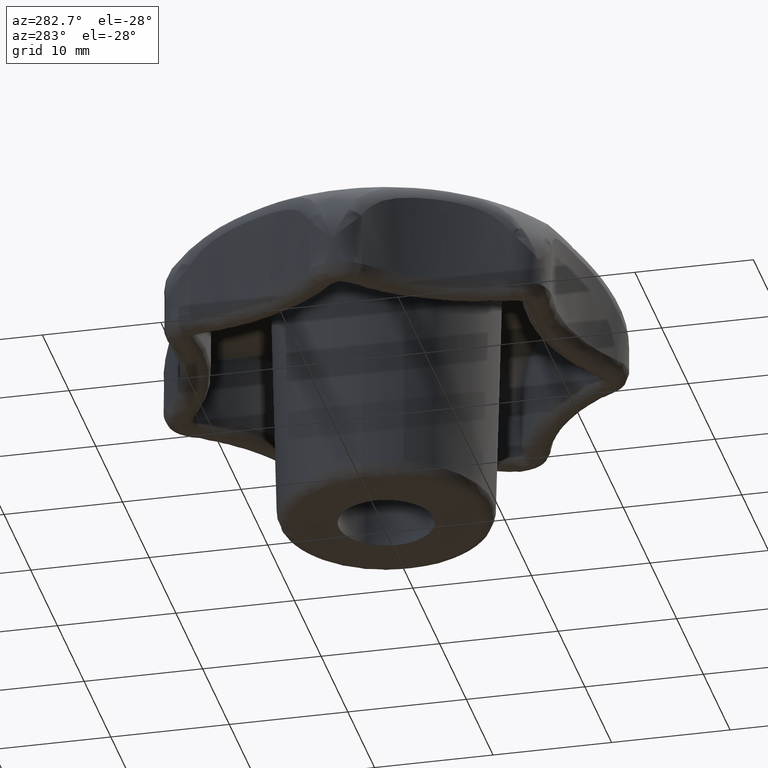
[diagram: clean part render]
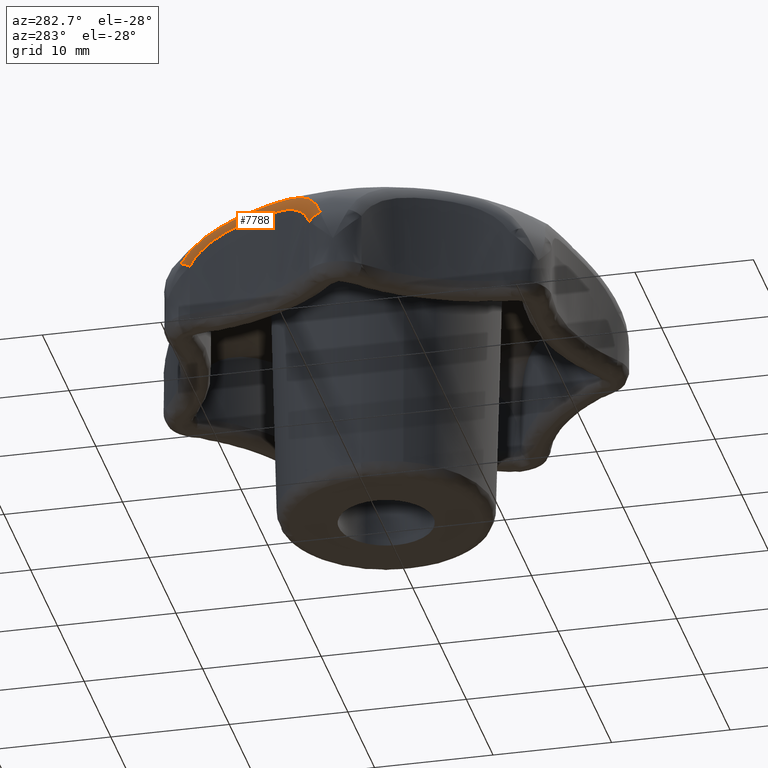
[diagram: same view with one face highlighted and labeled with its STEP entity id]
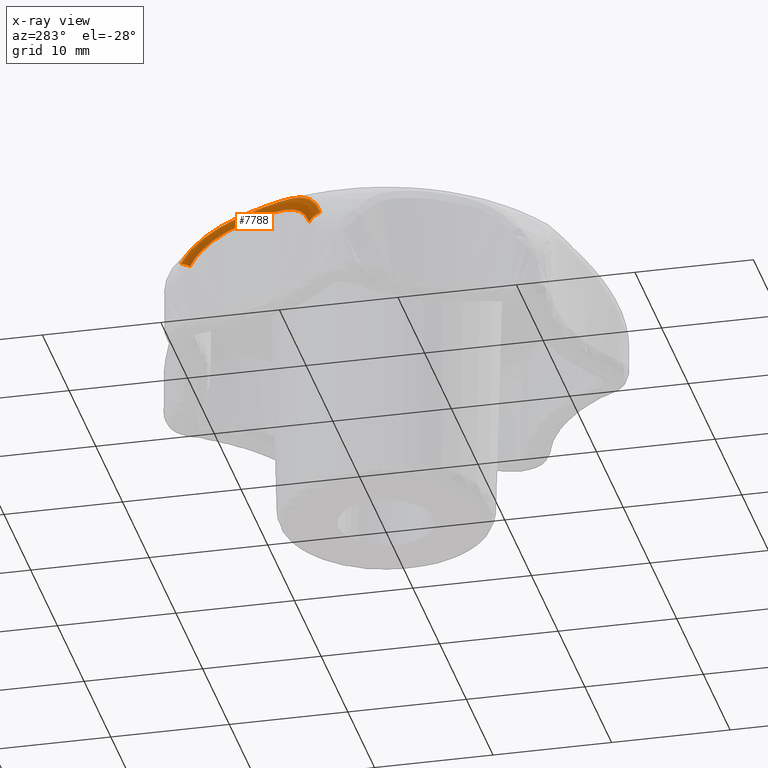
[diagram: x-ray of the same camera — body ghosted, the highlighted face saturated]
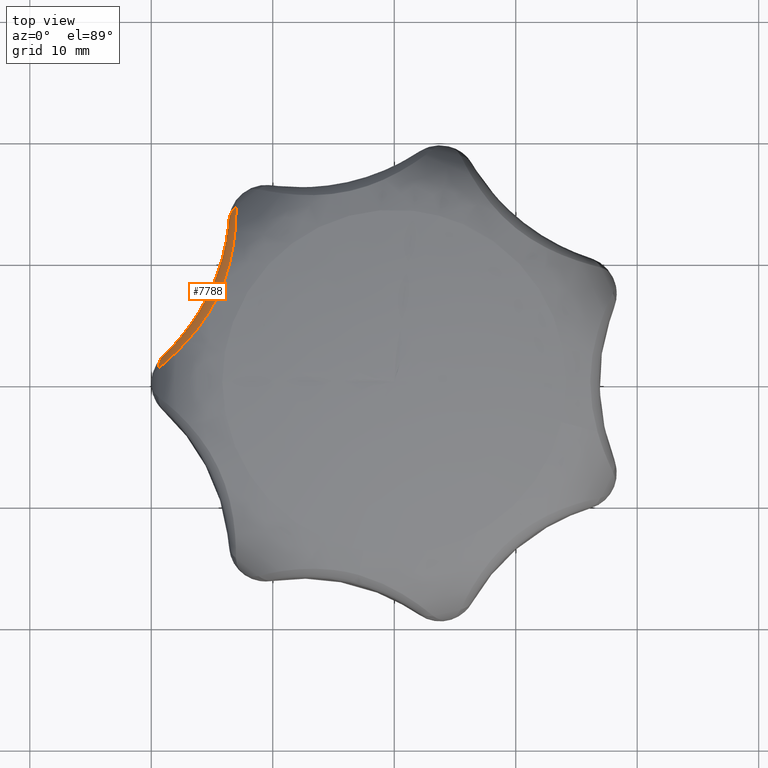
[diagram: same view with one face highlighted and labeled with its STEP entity id]
A machine part, auxiliary view. The second image highlights one B-rep face of the part: STEP entity #7788.
The next image is the same camera in x-ray: the body ghosted, the highlighted face saturated — about 0% of this face is hidden behind the body in this view.
A second angle (top view) of the same face is appended — the face is thin or edge-on in the first view.
In plain terms, the highlighted face is a freeform B-spline surface patch.
Its self-contained STEP definition (entity closure, byte-faithful):
#2648=CARTESIAN_POINT('',(-13.025311458591400,14.427530550292500,19.019536180704350));
#2649=VERTEX_POINT('',#2648);
#2669=CARTESIAN_POINT('',(-19.401046342330648,1.188180313989750,19.019536477322148));
#2670=VERTEX_POINT('',#2669);
#2671=CARTESIAN_POINT('',(-13.025311458591400,14.427530550292500,19.019536180704350));
#2672=CARTESIAN_POINT('',(-13.024703611390869,14.245952191734879,19.348599415041839));
#2673=CARTESIAN_POINT('',(-13.026108911142851,14.036789038572531,19.655302041042191));
#2674=CARTESIAN_POINT('',(-13.034659420409000,13.685182790381280,20.084584493501641));
#2675=CARTESIAN_POINT('',(-13.038590802816429,13.561634427314321,20.222520753567910));
#2676=CARTESIAN_POINT('',(-13.046626407043250,13.366969576168650,20.421820283430719));
#2677=CARTESIAN_POINT('',(-13.049662100777640,13.300522734578839,20.486984748199511));
#2678=CARTESIAN_POINT('',(-13.056544000318659,13.164524898659581,20.614784635447219));
#2679=CARTESIAN_POINT('',(-13.060398894406390,13.094833182776849,20.677539978985362));
#2680=CARTESIAN_POINT('',(-13.081854130334740,12.740336092532850,20.983530353034840));
#2681=CARTESIAN_POINT('',(-13.105791823682789,12.440047325415330,21.201533031310319));
#2682=CARTESIAN_POINT('',(-13.155556705135620,11.968147019508990,21.493273741656260));
#2683=CARTESIAN_POINT('',(-13.174460343045860,11.807252784027011,21.584617461050168));
#2684=CARTESIAN_POINT('',(-13.206817217174530,11.560856626120300,21.713213799577161));
#2685=CARTESIAN_POINT('',(-13.218270288099911,11.477881532545840,21.754675069760559));
#2686=CARTESIAN_POINT('',(-13.242606596668161,11.310295329203910,21.834851467607891));
#2687=CARTESIAN_POINT('',(-13.255465546237721,11.225867809370669,21.873472792150960));
#2688=CARTESIAN_POINT('',(-13.323014347666611,10.803027196690550,22.058557840298171));
#2689=CARTESIAN_POINT('',(-13.387765420383021,10.460353953704439,22.182154223721032));
#2690=CARTESIAN_POINT('',(-13.542302909971131,9.769511265294865,22.388961448534278));
#2691=CARTESIAN_POINT('',(-13.632089686362670,9.421336145333576,22.472152070896950));
#2692=CARTESIAN_POINT('',(-13.788539088888321,8.896837128808164,22.570745803983069));
#2693=CARTESIAN_POINT('',(-13.844319998435960,8.721625919075679,22.599223330882801));
#2694=CARTESIAN_POINT('',(-13.933836268471840,8.458424717533418,22.635665473951409));
#2695=CARTESIAN_POINT('',(-13.964609541647111,8.370753594481251,22.646744513339399));
#2696=CARTESIAN_POINT('',(-14.027728292105250,8.196466474486050,22.666732596941120));
#2697=CARTESIAN_POINT('',(-14.060118452230499,8.109717778401260,22.675660498030709));
#2698=CARTESIAN_POINT('',(-14.226253657902859,7.677963746212858,22.715166185266479));
#2699=CARTESIAN_POINT('',(-14.518902519300029,6.999915770518805,22.745867504478181));
#2700=CARTESIAN_POINT('',(-14.865985041284270,6.347764702262727,22.715955911101481));
#2701=CARTESIAN_POINT('',(-15.099727179016620,5.948165954748275,22.676932097703620));
#2702=CARTESIAN_POINT('',(-15.147314745657640,5.868645174237074,22.668099917062829));
#2703=CARTESIAN_POINT('',(-15.244157084122611,5.710396033957017,22.648301365693200));
#2704=CARTESIAN_POINT('',(-15.293465897446829,5.631584829710596,22.637321056322548));
#2705=CARTESIAN_POINT('',(-15.443321179199669,5.397183520255845,22.601170255018751));
#2706=CARTESIAN_POINT('',(-15.545857555679319,5.243509896843320,22.572793764003759));
#2707=CARTESIAN_POINT('',(-15.755793422824730,4.941199729967530,22.506865790731101));
#2708=CARTESIAN_POINT('',(-15.863303596431759,4.792439129848949,22.469252922200841));
#2709=CARTESIAN_POINT('',(-16.080846490028719,4.502273066119286,22.384804023728179));
#2710=CARTESIAN_POINT('',(-16.191086207685320,4.360556184239763,22.337910971200749));
#2711=CARTESIAN_POINT('',(-16.525253982773190,3.945138945186513,22.182261774613909));
#2712=CARTESIAN_POINT('',(-16.752640809920180,3.681141742368736,22.058620620950730));
#2713=CARTESIAN_POINT('',(-17.096669558688959,3.303643820290587,21.838056460149328));
#2714=CARTESIAN_POINT('',(-17.211835265845028,3.180901508670561,21.758664944253230));
#2715=CARTESIAN_POINT('',(-17.384788462687581,3.001381128443722,21.629888321416018));
#2716=CARTESIAN_POINT('',(-17.442496380144640,2.942287490961567,21.585319037384430));
#2717=CARTESIAN_POINT('',(-17.556927336117450,2.826587000681132,21.493577648272389));
#2718=CARTESIAN_POINT('',(-17.613768953415448,2.769855752718366,21.446319982771129));
#2719=CARTESIAN_POINT('',(-17.895866795938449,2.491677650442626,21.202969428613979));
#2720=CARTESIAN_POINT('',(-18.114815432204232,2.286591304951726,20.985779956488749));
#2721=CARTESIAN_POINT('',(-18.428354743838611,2.003772987344216,20.622831875327670));
#2722=CARTESIAN_POINT('',(-18.530383421465540,1.913649686576772,20.495638436106852));
#2723=CARTESIAN_POINT('',(-18.679015741760988,1.784664576067281,20.294889391204670));
#2724=CARTESIAN_POINT('',(-18.727738243808840,1.742779768537670,20.226413935583661));
#2725=CARTESIAN_POINT('',(-18.822789121692860,1.661756141765994,20.087260014165871));
#2726=CARTESIAN_POINT('',(-18.869215477301239,1.622532075899459,20.016451086555271));
#2727=CARTESIAN_POINT('',(-19.095679707001150,1.432703446603934,19.656217858393749));
#2728=CARTESIAN_POINT('',(-19.258811680907950,1.300831249323231,19.348350063364741));
#2729=CARTESIAN_POINT('',(-19.401046342330648,1.188180313989749,19.019536477322148));
#2730=B_SPLINE_CURVE_WITH_KNOTS('',3,(#2671,#2672,#2673,#2674,#2675,#2676,#2677,#2678,#2679,#2680,#2681,#2682,#2683,#2684,#2685,#2686,#2687,#2688,#2689,#2690,#2691,#2692,#2693,#2694,#2695,#2696,#2697,#2698,#2699,#2700,#2701,#2702,#2703,#2704,#2705,#2706,#2707,#2708,#2709,#2710,#2711,#2712,#2713,#2714,#2715,#2716,#2717,#2718,#2719,#2720,#2721,#2722,#2723,#2724,#2725,#2726,#2727,#2728,#2729),.UNSPECIFIED.,.F.,.U.,(4,2,2,2,2,2,2,2,2,2,2,2,2,2,1,2,2,2,2,2,2,2,2,2,2,2,2,2,2,4),(0.0,0.062499999999999,0.093749999999999,0.109374999999999,0.124999999999999,0.187499999999998,0.218749999999998,0.234374999999998,0.249999999999998,0.312499999999998,0.374999999999998,0.406249999999998,0.421874999999998,0.437499999999998,0.499999999999998,0.562499999999999,0.578124999999999,0.593749999999999,0.624999999999999,0.656250000000000,0.687500000000000,0.750000000000000,0.781250000000000,0.796875000000000,0.812500000000000,0.875000000000000,0.906250000000000,0.921875000000000,0.937500000000000,1.0),.UNSPECIFIED.);
#2731=EDGE_CURVE('',#2649,#2670,#2730,.T.);
#7472=CARTESIAN_POINT('',(-19.032323618235001,2.206730774418180,18.449535314902100));
#7473=VERTEX_POINT('',#7472);
#7474=CARTESIAN_POINT('',(-19.401046342330648,1.188180313989748,19.019536477322148));
#7475=CARTESIAN_POINT('',(-19.456463808517643,1.816112362060035,18.791458681313724));
#7476=CARTESIAN_POINT('',(-19.032323618235001,2.206730774418180,18.449535314902100));
#7484=(BOUNDED_CURVE()B_SPLINE_CURVE(2,(#7474,#7475,#7476),.UNSPECIFIED.,.F.,.U.)CURVE()GEOMETRIC_REPRESENTATION_ITEM()QUASI_UNIFORM_CURVE()RATIONAL_B_SPLINE_CURVE((1.0,0.912974196863381,1.0))REPRESENTATION_ITEM(''));
#7485=EDGE_CURVE('',#2670,#7473,#7484,.T.);
#7514=CARTESIAN_POINT('',(-13.589457148974804,13.536255015175412,18.377182316242514));
#7515=CARTESIAN_POINT('',(-13.590352538114221,13.523736591660171,18.400210891284516));
#7516=CARTESIAN_POINT('',(-13.591247925638337,13.511218190728432,18.423239424782476));
#7517=CARTESIAN_POINT('',(-13.603335499557977,13.342221982335813,18.734120572240560));
#7518=CARTESIAN_POINT('',(-13.618474605012167,13.160724880537831,18.997869107571510));
#7519=CARTESIAN_POINT('',(-13.650101213094091,12.855844981652329,19.361526568970785));
#7520=CARTESIAN_POINT('',(-13.662136637414479,12.748734797377466,19.477385443935827));
#7521=CARTESIAN_POINT('',(-13.689777436859911,12.523992971892108,19.698749521286366));
#7522=CARTESIAN_POINT('',(-13.705479139718539,12.405731115185997,19.804727734716625));
#7523=CARTESIAN_POINT('',(-13.757983419852732,12.041750614601915,20.102679368079169));
#7524=CARTESIAN_POINT('',(-13.800180299902278,11.786498493509782,20.275667852807757));
#7525=CARTESIAN_POINT('',(-13.901546089859371,11.255954439062586,20.579052381891778));
#7526=CARTESIAN_POINT('',(-13.961238078377695,10.978678439946920,20.710017416975880));
#7527=CARTESIAN_POINT('',(-14.164289614783618,10.142500623446875,21.040959584674045));
#7528=CARTESIAN_POINT('',(-14.331674771368235,9.576737466314535,21.183645933820848));
#7529=CARTESIAN_POINT('',(-14.634422367287568,8.726362604884473,21.322782137524886));
#7530=CARTESIAN_POINT('',(-14.744326613965645,8.441813415758567,21.356264523788102));
#7531=CARTESIAN_POINT('',(-14.977533726252561,7.883177758357255,21.399985050201739));
#7532=CARTESIAN_POINT('',(-15.101248462330433,7.607793094304230,21.410492959468776));
#7533=CARTESIAN_POINT('',(-15.493462044572071,6.793249259977153,21.410552691087521));
#7534=CARTESIAN_POINT('',(-15.782997459983147,6.265643718144621,21.370186552807272));
#7535=CARTESIAN_POINT('',(-16.259065295534338,5.497772944172849,21.231819610952058));
#7536=CARTESIAN_POINT('',(-16.424982483006723,5.245573048793237,21.172060873218879));
#7537=CARTESIAN_POINT('',(-16.762682354405950,4.760171684498110,21.021946569507843));
#7538=CARTESIAN_POINT('',(-16.935269709651401,4.525623611837847,20.931420995160845));
#7539=CARTESIAN_POINT('',(-17.285457106628730,4.073642853674595,20.711859017777922));
#7540=CARTESIAN_POINT('',(-17.464357526219587,3.854728258718567,20.581724655514201));
#7541=CARTESIAN_POINT('',(-17.817427496776517,3.442770232913618,20.277543119840374));
#7542=CARTESIAN_POINT('',(-17.990399736228735,3.250944099103291,20.104819126605776));
#7543=CARTESIAN_POINT('',(-18.240331602428306,2.984824121081843,19.809776508183635));
#7544=CARTESIAN_POINT('',(-18.322045943139852,2.899727461086799,19.705419499681827));
#7545=CARTESIAN_POINT('',(-18.481423368431493,2.736947632768462,19.483523816658323));
#7546=CARTESIAN_POINT('',(-18.559052235207446,2.659317012972882,19.365897272701854));
#7547=CARTESIAN_POINT('',(-18.779948875218633,2.442217781936321,18.999103006822651));
#7548=CARTESIAN_POINT('',(-18.912958245053499,2.316731625493069,18.734000711085343));
#7549=CARTESIAN_POINT('',(-19.037496270425116,2.201961723154430,18.423249516775893));
#7550=CARTESIAN_POINT('',(-19.046721448213283,2.193460120927755,18.400230563272839));
#7551=CARTESIAN_POINT('',(-19.055946642638016,2.184958503369405,18.377211568257707));
#7552=CARTESIAN_POINT('',(-13.589265973207228,13.539025943845795,18.378765609913103));
#7553=CARTESIAN_POINT('',(-13.590159904098531,13.526499376650241,18.401810649161686));
#7554=CARTESIAN_POINT('',(-13.591053834183127,13.513972820758928,18.424855667613933));
#7555=CARTESIAN_POINT('',(-13.603121811808457,13.344865416473489,18.735961392601961));
#7556=CARTESIAN_POINT('',(-13.618242510949848,13.163251175946694,18.999902129229451));
#7557=CARTESIAN_POINT('',(-13.649844940116244,12.858181377333343,19.363828035247931));
#7558=CARTESIAN_POINT('',(-13.661872881847266,12.751005637906141,19.479772892447585));
#7559=CARTESIAN_POINT('',(-13.689500391131647,12.526129076638542,19.701302539062734));
#7560=CARTESIAN_POINT('',(-13.705196266673614,12.407797717332750,19.807360683501738));
#7561=CARTESIAN_POINT('',(-13.757686507626104,12.043608599757910,20.105538884523909));
#7562=CARTESIAN_POINT('',(-13.799878512968171,11.788216602324518,20.278662133422660));
#7563=CARTESIAN_POINT('',(-13.901244523255812,11.257398413653535,20.582288817547692));
#7564=CARTESIAN_POINT('',(-13.960941624304407,10.979987407103893,20.713361814776999));
#7565=CARTESIAN_POINT('',(-14.164021904023308,10.143430839644310,21.044583371390747));
#7566=CARTESIAN_POINT('',(-14.331443182317919,9.577446034288913,21.187403530588458));
#7567=CARTESIAN_POINT('',(-14.634263517593892,8.726780137780381,21.326673995168044));
#7568=CARTESIAN_POINT('',(-14.744195198849622,8.442140391197391,21.360189851679458));
#7569=CARTESIAN_POINT('',(-14.977462943103749,7.883335214632850,21.403954309666396));
#7570=CARTESIAN_POINT('',(-15.101211036712732,7.607870829218005,21.414473070465270));
#7571=CARTESIAN_POINT('',(-15.493536580534528,6.793094444904319,21.414532863055626));
#7572=CARTESIAN_POINT('',(-15.783162962582313,6.265340510251793,21.374123646676150));
#7573=CARTESIAN_POINT('',(-16.259411714948939,5.497232558961289,21.235623944060492));
#7574=CARTESIAN_POINT('',(-16.425397407005526,5.244950675101907,21.175808749704942));
#7575=CARTESIAN_POINT('',(-16.763249696149792,4.759382652693806,21.025558523442164));
#7576=CARTESIAN_POINT('',(-16.935921431903857,4.524749438301476,20.934953091516498));
#7577=CARTESIAN_POINT('',(-17.286294170047647,4.072596282851873,20.715204955928812));
#7578=CARTESIAN_POINT('',(-17.465296463557696,3.853593828828104,20.584963253838552));
#7579=CARTESIAN_POINT('',(-17.818581384633426,3.441463976920366,20.280538861151545));
#7580=CARTESIAN_POINT('',(-17.991665830865021,3.249554584340600,20.107680320483389));
#7581=CARTESIAN_POINT('',(-18.241768136096091,2.983316382889336,19.812413283332962));
#7582=CARTESIAN_POINT('',(-18.323539717735315,2.898181375425210,19.707977531611427));
#7583=CARTESIAN_POINT('',(-18.483031317296490,2.735327483557880,19.485915830366878));
#7584=CARTESIAN_POINT('',(-18.560717083954579,2.657661188766556,19.368201970739818));
#7585=CARTESIAN_POINT('',(-18.781778896411321,2.440461415233161,19.001136910995445));
#7586=CARTESIAN_POINT('',(-18.914891770957418,2.314916382675991,18.735841444681192));
#7587=CARTESIAN_POINT('',(-19.039528909623893,2.200092494234764,18.424865766804555));
#7588=CARTESIAN_POINT('',(-19.048761368921006,2.191586948554620,18.401830335157872));
#7589=CARTESIAN_POINT('',(-19.057993836546750,2.183081395201600,18.378794882730880));
#7590=CARTESIAN_POINT('',(-13.549050900291610,14.121908910312600,18.711821787561689));
#7591=CARTESIAN_POINT('',(-13.549634217879902,14.107724645669055,18.738362246865442));
#7592=CARTESIAN_POINT('',(-13.550217645593410,14.093537703161724,18.764907716773308));
#7593=CARTESIAN_POINT('',(-13.558104714307605,13.901751492444122,19.123762704923045));
#7594=CARTESIAN_POINT('',(-13.569273527267656,13.696268338954209,19.428844616573535));
#7595=CARTESIAN_POINT('',(-13.595619257055136,13.352547395850047,19.850803220758493));
#7596=CARTESIAN_POINT('',(-13.606005010600684,13.232007906889006,19.985474696134890));
#7597=CARTESIAN_POINT('',(-13.630681125603466,12.979643061742481,20.243330858477936));
#7598=CARTESIAN_POINT('',(-13.645063321791069,12.847114489328293,20.367071009417018));
#7599=CARTESIAN_POINT('',(-13.694311485494090,12.440189945437737,20.715894072770194));
#7600=CARTESIAN_POINT('',(-13.735265592550029,12.156065622839465,20.919740964922653));
#7601=CARTESIAN_POINT('',(-13.836250650386104,11.568604959352374,21.279807989402983));
#7602=CARTESIAN_POINT('',(-13.896820658223765,11.263107951678304,21.436731932722903));
#7603=CARTESIAN_POINT('',(-14.105496345850943,10.346789950474259,21.836797102540935));
#7604=CARTESIAN_POINT('',(-14.280457190913825,9.733442358815992,22.014665424998316));
#7605=CARTESIAN_POINT('',(-14.599021487705263,8.819413031531548,22.190112634586587));
#7606=CARTESIAN_POINT('',(-14.714978947174256,8.514833677940844,22.232870035244087));
#7607=CARTESIAN_POINT('',(-14.961682382908723,7.918438883748767,22.288870267172793));
#7608=CARTESIAN_POINT('',(-15.092861265051827,7.625213730151269,22.302448207526339));
#7609=CARTESIAN_POINT('',(-15.510165852087354,6.758554582502795,22.302525159870086));
#7610=CARTESIAN_POINT('',(-15.819978246338334,6.197893324113142,22.249911874157281));
#7611=CARTESIAN_POINT('',(-16.335881004052236,5.377946886077939,22.075399765092605));
#7612=CARTESIAN_POINT('',(-16.516707106200151,5.107988834600058,22.000580215230070));
#7613=CARTESIAN_POINT('',(-16.887278544019715,4.586889253993179,21.815182220083905));
#7614=CARTESIAN_POINT('',(-17.077893915376112,4.334317720685297,21.704392050497066));
#7615=CARTESIAN_POINT('',(-17.467355044498049,3.846217941553409,21.438947594496728));
#7616=CARTESIAN_POINT('',(-17.667670216851267,3.609084610309159,21.282994178486245));
#7617=CARTESIAN_POINT('',(-18.065638433537760,3.161783634609787,20.921952152045140));
#7618=CARTESIAN_POINT('',(-18.261920373812362,2.952955367862625,20.718417165515557));
#7619=CARTESIAN_POINT('',(-18.547165071995419,2.662781866744824,20.372973101262126));
#7620=CARTESIAN_POINT('',(-18.640705504020129,2.569908638687634,20.251111824266900));
#7621=CARTESIAN_POINT('',(-18.823641843082807,2.392132568293217,19.992614186696468));
#7622=CARTESIAN_POINT('',(-18.913001249096727,2.307286628226273,19.855879079907531));
#7623=CARTESIAN_POINT('',(-19.167892566697990,2.069888005025299,19.430267572598630));
#7624=CARTESIAN_POINT('',(-19.322222970718251,1.932503593150217,19.123624314575540));
#7625=CARTESIAN_POINT('',(-19.467189367602991,1.806813009940468,18.764919342413489));
#7626=CARTESIAN_POINT('',(-19.477912949227999,1.797515315733317,18.738384903185210));
#7627=CARTESIAN_POINT('',(-19.488634507433275,1.788219375896932,18.711855470708425));
#7628=CARTESIAN_POINT('',(-13.023056851212583,14.476880097519865,18.934075979022133));
#7629=CARTESIAN_POINT('',(-13.023000857115946,14.460965293508893,18.962913228905595));
#7630=CARTESIAN_POINT('',(-13.022944863068036,14.445050503353285,18.991750453683430));
#7631=CARTESIAN_POINT('',(-13.022188948165173,14.230202184528995,19.381050545139477));
#7632=CARTESIAN_POINT('',(-13.023924896291271,14.000101780822380,19.711331773845028));
#7633=CARTESIAN_POINT('',(-13.034248062791985,13.615554336850485,20.166724045236325));
#7634=CARTESIAN_POINT('',(-13.038981018874443,13.480751925632729,20.311808703886737));
#7635=CARTESIAN_POINT('',(-13.051794137941897,13.198696588111241,20.589012596733660));
#7636=CARTESIAN_POINT('',(-13.059932891520818,13.050659243226404,20.721724111551008));
#7637=CARTESIAN_POINT('',(-13.090081833564705,12.596467751831737,21.094833906119565));
#7638=CARTESIAN_POINT('',(-13.117775857677149,12.279792731989991,21.311459168779518));
#7639=CARTESIAN_POINT('',(-13.192484949004410,11.626491596054128,21.691373211691918));
#7640=CARTESIAN_POINT('',(-13.239962440336438,11.287481574884399,21.855374790081417));
#7641=CARTESIAN_POINT('',(-13.413215096718670,10.273577455827601,22.269795583358253));
#7642=CARTESIAN_POINT('',(-13.569534291205489,9.598762422382414,22.448478854716107));
#7643=CARTESIAN_POINT('',(-13.877552915082527,8.601203460374075,22.622715586582878));
#7644=CARTESIAN_POINT('',(-13.992939389345718,8.270159907504377,22.664644912365421));
#7645=CARTESIAN_POINT('',(-14.245483240600324,7.624861897916192,22.719394993052592));
#7646=CARTESIAN_POINT('',(-14.383042091483897,7.309064139942389,22.732553913116266));
#7647=CARTESIAN_POINT('',(-14.830359507899347,6.380030649491863,22.732628713597521));
#7648=CARTESIAN_POINT('',(-15.174889210280694,5.785056103386549,22.682077559124078));
#7649=CARTESIAN_POINT('',(-15.762524652667054,4.921155042900745,22.508806204009723));
#7650=CARTESIAN_POINT('',(-15.970547822731318,4.637758322271758,22.433972142245885));
#7651=CARTESIAN_POINT('',(-16.399571511013871,4.091822117915792,22.245990044559981));
#7652=CARTESIAN_POINT('',(-16.621550036495755,3.827765524065502,22.132628442190498));
#7653=CARTESIAN_POINT('',(-17.076354422321614,3.317634175728967,21.857680949631440));
#7654=CARTESIAN_POINT('',(-17.310898178031309,3.069875393834478,21.694719564356333));
#7655=CARTESIAN_POINT('',(-17.777003970103625,2.601977010739223,21.313807466575092));
#7656=CARTESIAN_POINT('',(-18.006947633953665,2.383237202245749,21.097513443796597));
#7657=CARTESIAN_POINT('',(-18.340687605348425,2.078636675721552,20.728046457574681));
#7658=CARTESIAN_POINT('',(-18.450062366750213,1.981031703298824,20.597365094336087));
#7659=CARTESIAN_POINT('',(-18.663785875567747,1.793968502455958,20.319495499782413));
#7660=CARTESIAN_POINT('',(-18.768090646506533,1.704568847696898,20.172197269964300));
#7661=CARTESIAN_POINT('',(-19.065326148791048,1.454111046690977,19.712876908593458));
#7662=CARTESIAN_POINT('',(-19.244887403191143,1.308718902180729,19.380899589820324));
#7663=CARTESIAN_POINT('',(-19.413263114325083,1.175410183779413,18.991763159980380));
#7664=CARTESIAN_POINT('',(-19.425735492604655,1.165535382047815,18.962938000326218));
#7665=CARTESIAN_POINT('',(-19.438207881738801,1.155660571722276,18.934112815585795));
#7666=CARTESIAN_POINT('',(-13.020644061157959,14.478508387709958,18.935095482386636));
#7667=CARTESIAN_POINT('',(-13.020585364563846,14.462585491197672,18.963943169781142));
#7668=CARTESIAN_POINT('',(-13.020526668071888,14.446662622398080,18.992790806968280));
#7669=CARTESIAN_POINT('',(-13.019734275400088,14.231706598131790,19.382229009170707));
#7670=CARTESIAN_POINT('',(-13.021430805140882,14.001491329187447,19.712623697357870));
#7671=CARTESIAN_POINT('',(-13.031688042096322,13.616753727234158,20.168164738768748));
#7672=CARTESIAN_POINT('',(-13.036397945950995,13.481885076873354,20.313295315655772));
#7673=CARTESIAN_POINT('',(-13.049163132765944,13.199692172696780,20.590583698627391));
#7674=CARTESIAN_POINT('',(-13.057276891870236,13.051583165085965,20.723333938124032));
#7675=CARTESIAN_POINT('',(-13.087350285722158,12.597174238684101,21.096546983723311));
#7676=CARTESIAN_POINT('',(-13.114992890653149,12.280350358206745,21.313224605162461));
#7677=CARTESIAN_POINT('',(-13.189602664435105,11.626750767611993,21.693215882227033));
#7678=CARTESIAN_POINT('',(-13.237032034965360,11.287590311586497,21.857242458391507));
#7679=CARTESIAN_POINT('',(-13.410159450799739,10.273254304708372,22.271706786416935));
#7680=CARTESIAN_POINT('',(-13.566418338695494,9.598172124494765,22.450380245212518));
#7681=CARTESIAN_POINT('',(-13.874414971588966,8.600254383269364,22.624597142717157));
#7682=CARTESIAN_POINT('',(-13.989805495093966,8.269097941141990,22.666518960387869));
#7683=CARTESIAN_POINT('',(-14.242383365741350,7.623591229098265,22.721258403234319));
#7684=CARTESIAN_POINT('',(-14.379972043908230,7.307696757489065,22.734414168555823));
#7685=CARTESIAN_POINT('',(-14.827419280951775,6.378393497562271,22.734488952281247));
#7686=CARTESIAN_POINT('',(-15.172090880305781,5.783265257929656,22.683952249473418));
#7687=CARTESIAN_POINT('',(-15.760018304858923,4.919158240681402,22.510700780176172));
#7688=CARTESIAN_POINT('',(-15.968153007140405,4.635696441431626,22.435872492153333));
#7689=CARTESIAN_POINT('',(-16.397418822251659,4.089636942414410,22.247891586058593));
#7690=CARTESIAN_POINT('',(-16.619528645618765,3.825521733721527,22.134525329988094));
#7691=CARTESIAN_POINT('',(-17.074610167610601,3.315276162284965,21.859548920130536));
#7692=CARTESIAN_POINT('',(-17.309300933400838,3.067461390123399,21.696562831457634));
#7693=CARTESIAN_POINT('',(-17.775703166295322,2.599454101383307,21.315573461111473));
#7694=CARTESIAN_POINT('',(-18.005795020348099,2.380661770419581,21.099227162402038));
#7695=CARTESIAN_POINT('',(-18.339750431756379,2.075985318864853,20.729658088026085));
#7696=CARTESIAN_POINT('',(-18.449195971669202,1.978355498493074,20.598938673822182));
#7697=CARTESIAN_POINT('',(-18.663057695560401,1.791243730146074,20.320984517932079));
#7698=CARTESIAN_POINT('',(-18.767429835303194,1.701820376193121,20.173639722069705));
#7699=CARTESIAN_POINT('',(-19.064857074873807,1.451294872392587,19.714169384932067));
#7700=CARTESIAN_POINT('',(-19.244533180375743,1.305861759257865,19.382077996797197));
#7701=CARTESIAN_POINT('',(-19.413015796057422,1.172514424410226,18.992803518184136));
#7702=CARTESIAN_POINT('',(-19.425496171933975,1.162636699908491,18.963967950831481));
#7703=CARTESIAN_POINT('',(-19.437976569524093,1.152758958221319,18.935132333310204));
#7711=(BOUNDED_SURFACE()B_SPLINE_SURFACE(3,2,((#7514,#7552,#7590,#7628,#7666),(#7515,#7553,#7591,#7629,#7667),(#7516,#7554,#7592,#7630,#7668),(#7517,#7555,#7593,#7631,#7669),(#7518,#7556,#7594,#7632,#7670),(#7519,#7557,#7595,#7633,#7671),(#7520,#7558,#7596,#7634,#7672),(#7521,#7559,#7597,#7635,#7673),(#7522,#7560,#7598,#7636,#7674),(#7523,#7561,#7599,#7637,#7675),(#7524,#7562,#7600,#7638,#7676),(#7525,#7563,#7601,#7639,#7677),(#7526,#7564,#7602,#7640,#7678),(#7527,#7565,#7603,#7641,#7679),(#7528,#7566,#7604,#7642,#7680),(#7529,#7567,#7605,#7643,#7681),(#7530,#7568,#7606,#7644,#7682),(#7531,#7569,#7607,#7645,#7683),(#7532,#7570,#7608,#7646,#7684),(#7533,#7571,#7609,#7647,#7685),(#7534,#7572,#7610,#7648,#7686),(#7535,#7573,#7611,#7649,#7687),(#7536,#7574,#7612,#7650,#7688),(#7537,#7575,#7613,#7651,#7689),(#7538,#7576,#7614,#7652,#7690),(#7539,#7577,#7615,#7653,#7691),(#7540,#7578,#7616,#7654,#7692),(#7541,#7579,#7617,#7655,#7693),(#7542,#7580,#7618,#7656,#7694),(#7543,#7581,#7619,#7657,#7695),(#7544,#7582,#7620,#7658,#7696),(#7545,#7583,#7621,#7659,#7697),(#7546,#7584,#7622,#7660,#7698),(#7547,#7585,#7623,#7661,#7699),(#7548,#7586,#7624,#7662,#7700),(#7549,#7587,#7625,#7663,#7701),(#7550,#7588,#7626,#7664,#7702),(#7551,#7589,#7627,#7665,#7703)),.UNSPECIFIED.,.F.,.F.,.U.)B_SPLINE_SURFACE_WITH_KNOTS((4,2,2,2,2,2,2,2,2,2,2,2,2,2,2,2,2,2,4),(3,1,1,3),(0.0,0.098851390109416,1.334493814986808,1.952315027425503,2.570136239864199,3.805778664741591,5.041421089618983,7.512705939373765,8.748348364251156,9.983990789128548,12.455275638883331,13.690918063760730,14.926560488638120,16.162202913515511,17.397845338392901,18.015666550831590,18.633487763270288,19.869130188147679,19.967981793441162),(0.0,0.008564281345330,1.643742845438586,1.652004972958288),.UNSPECIFIED.)GEOMETRIC_REPRESENTATION_ITEM()RATIONAL_B_SPLINE_SURFACE(((1.000908890489047,1.000454445244523,0.913232752120635,1.000438412098993,1.000876824197987),(1.000909793320941,1.000454896660470,0.913146563256669,1.000438847588670,1.000877695177341),(1.000910696152835,1.000455348076417,0.913060374392703,1.000439283078348,1.000878566156695),(1.000922884383844,1.000461442191922,0.911896824686864,1.000445162189202,1.000890324378404),(1.000937235416549,1.000468617708274,0.910526803075809,1.000452084548328,1.000904169096655),(1.000964284857415,1.000482142428708,0.907944527687359,1.000465132107181,1.000930264214361),(1.000974221108457,1.000487110554229,0.906995963292052,1.000469924953765,1.000939849907529),(1.000996032822773,1.000498016411387,0.904913707568678,1.000480446044667,1.000960892089335),(1.001007977036987,1.000503988518493,0.903773452930908,1.000486207451665,1.000972414903331),(1.001046104338899,1.000523052169450,0.900133629326360,1.000504598523705,1.001009197047410),(1.001074643812202,1.000537321906101,0.897409107962897,1.000518364814084,1.001036729628168),(1.001135993497972,1.000567996748986,0.891552359040276,1.000547957427094,1.001095914854189),(1.001169032321345,1.000584516160672,0.888398307136596,1.000563894022402,1.001127788044804),(1.001266966342320,1.000633483171160,0.879049033955493,1.000611133442570,1.001222266885140),(1.001330888775730,1.000665444387865,0.872946677630348,1.000641967045233,1.001283934090467),(1.001400349174538,1.000700174587269,0.866315639332753,1.000675471938953,1.001350943877906),(1.001419062962109,1.000709531481054,0.864529127245232,1.000684498714993,1.001368997429985),(1.001444103092336,1.000722051546168,0.862138670735315,1.000696577063467,1.001393154126934),(1.001450553058205,1.000725276529103,0.861522924620521,1.000699688266752,1.001399376533504),(1.001450588882463,1.000725294441231,0.861519504657100,1.000699705546928,1.001399411093857),(1.001424107193154,1.000712053596577,0.864047579632282,1.000686931848518,1.001373863697037),(1.001354893221292,1.000677446610646,0.870655092776757,1.000653545821215,1.001307091642429),(1.001327038668821,1.000663519334410,0.873314228159859,1.000640109909009,1.001280219818018),(1.001266929226262,1.000633464613131,0.879052577240697,1.000611115539281,1.001222231078562),(1.001234595744899,1.000617297872450,0.882139293655970,1.000595519172499,1.001191038344998),(1.001169533677056,1.000584766838528,0.888350445204042,1.000564135856168,1.001128271712336),(1.001136598647789,1.000568299323895,0.891494588401446,1.000548249326949,1.001096498653897),(1.001074959213034,1.000537479606517,0.897378998216516,1.000518516950719,1.001037033901438),(1.001046465501528,1.000523232750764,0.900099150929082,1.000504772733985,1.001009545467969),(1.001008580774199,1.000504290387100,0.903715817146422,1.000486498670136,1.000972997340272),(1.000996748991222,1.000498374495611,0.904845338534090,1.000480791495430,1.000961582990860),(1.000974770292095,1.000487385146047,0.906943535465606,1.000470189857792,1.000940379715584),(1.000964634606229,1.000482317303115,0.907911138910204,1.000465300811896,1.000930601623793),(1.000937278887604,1.000468639443802,0.910522653110726,1.000452105517010,1.000904211034021),(1.000922880388822,1.000461440194411,0.911897206071680,1.000445160262165,1.000890320524329),(1.000910696492160,1.000455348246080,0.913060341998970,1.000439283242025,1.000878566484049),(1.000909793979510,1.000454896989755,0.913146500386334,1.000438847906338,1.000877695812675),(1.000908891466860,1.000454445733430,0.913232658773699,1.000438412570651,1.000876825141302)))REPRESENTATION_ITEM('')SURFACE());
#7712=CARTESIAN_POINT('',(-13.591751640692420,13.504195483846280,18.449535171352949));
#7713=VERTEX_POINT('',#7712);
#7714=CARTESIAN_POINT('',(-13.025311458591389,14.427530550292500,19.019536180704339));
#7715=CARTESIAN_POINT('',(-13.550800773047468,14.079348337422129,18.791458465080684));
#7716=CARTESIAN_POINT('',(-13.591751640692420,13.504195483846280,18.449535171352949));
#7724=(BOUNDED_CURVE()B_SPLINE_CURVE(2,(#7714,#7715,#7716),.UNSPECIFIED.,.F.,.U.)CURVE()GEOMETRIC_REPRESENTATION_ITEM()QUASI_UNIFORM_CURVE()RATIONAL_B_SPLINE_CURVE((1.0,0.912974182701209,1.0))REPRESENTATION_ITEM(''));
#7725=EDGE_CURVE('',#2649,#7713,#7724,.T.);
#7726=ORIENTED_EDGE('',*,*,#7725,.T.);
#7727=CARTESIAN_POINT('',(-19.032323618235001,2.206730774418180,18.449535314902100));
#7728=CARTESIAN_POINT('',(-18.921955842843978,2.308376049207160,18.724888326211548));
#7729=CARTESIAN_POINT('',(-18.794463228135800,2.428435403123292,18.981793012417970));
#7730=CARTESIAN_POINT('',(-18.616705776484601,2.602574059383822,19.280925043809798));
#7731=CARTESIAN_POINT('',(-18.580229789971501,2.638613126440410,19.339644774190418));
#7732=CARTESIAN_POINT('',(-18.505487785605570,2.713170817565841,19.454873086746179));
#7733=CARTESIAN_POINT('',(-18.467141568664172,2.751772257272337,19.511487397398721));
#7734=CARTESIAN_POINT('',(-18.350565666785979,2.870306904231138,19.676543388959530));
#7735=CARTESIAN_POINT('',(-18.270564147834602,2.953198981957134,19.780611747067351));
#7736=CARTESIAN_POINT('',(-18.024898111093631,3.213357302623795,20.076125234809400));
#7737=CARTESIAN_POINT('',(-17.853595212301510,3.402080188888686,20.250925423596300));
#7738=CARTESIAN_POINT('',(-17.589398983941280,3.708290698850946,20.483314809517712));
#7739=CARTESIAN_POINT('',(-17.499764014419089,3.814668787218451,20.556036203841568));
#7740=CARTESIAN_POINT('',(-17.321390842918291,4.031896766983572,20.690041378887639));
#7741=CARTESIAN_POINT('',(-17.232454502799509,4.142954047847120,20.751549553945601));
#7742=CARTESIAN_POINT('',(-16.967065387809591,4.483216254653214,20.921375484600439));
#7743=CARTESIAN_POINT('',(-16.792054293518461,4.719496557883204,21.015070218322268));
#7744=CARTESIAN_POINT('',(-16.534579497980960,5.087436425200341,21.131779300076840));
#7745=CARTESIAN_POINT('',(-16.449588830596049,5.212340194679020,21.166689786580619));
#7746=CARTESIAN_POINT('',(-16.323579074186071,5.403037410408508,21.213578011074830));
#7747=CARTESIAN_POINT('',(-16.281761874138880,5.467253993743675,21.228312804589070));
#7748=CARTESIAN_POINT('',(-16.198969338500060,5.596302428729739,21.255922550196590));
#7749=CARTESIAN_POINT('',(-16.158022248406041,5.661086807580993,21.268791124477499));
#7750=CARTESIAN_POINT('',(-15.955533472926000,5.986300332628719,21.328732260040230));
#7751=CARTESIAN_POINT('',(-15.800730091086921,6.250598620071834,21.362742099122460));
#7752=CARTESIAN_POINT('',(-15.505541040623569,6.787308930198003,21.407630618257521));
#7753=CARTESIAN_POINT('',(-15.365154371176100,7.059720868411970,21.418496916496910));
#7754=CARTESIAN_POINT('',(-15.098901202414590,7.612663875980234,21.418460907671790));
#7755=CARTESIAN_POINT('',(-14.973033792263699,7.893194313375229,21.407563549624768));
#7756=CARTESIAN_POINT('',(-14.795267370778751,8.320200689484471,21.373490019637810));
#7757=CARTESIAN_POINT('',(-14.737851799485020,8.463572547954351,21.359151879909611));
#7758=CARTESIAN_POINT('',(-14.626735497184169,8.752426346264977,21.323945603051278));
#7759=CARTESIAN_POINT('',(-14.573412759647450,8.896936431834861,21.303188122028018));
#7760=CARTESIAN_POINT('',(-14.420381008872260,9.329452436957157,21.230913062498828));
#7761=CARTESIAN_POINT('',(-14.327434096719850,9.616912681624523,21.169420547030409));
#7762=CARTESIAN_POINT('',(-14.158909446675640,10.188331380073340,21.014290765298810));
#7763=CARTESIAN_POINT('',(-14.083336703482400,10.472297405828391,20.920675864248292));
#7764=CARTESIAN_POINT('',(-13.999251192041280,10.823502071854080,20.778329948595552));
#7765=CARTESIAN_POINT('',(-13.982952936181499,10.893553053024521,20.748586087856829));
#7766=CARTESIAN_POINT('',(-13.951381126018440,11.033225460238659,20.686380466407531));
#7767=CARTESIAN_POINT('',(-13.936113200326909,11.102832787567060,20.653916648566518));
#7768=CARTESIAN_POINT('',(-13.892177185421639,11.309204950744901,20.553063786898200));
#7769=CARTESIAN_POINT('',(-13.865245012436480,11.444094845538110,20.480968176140660));
#7770=CARTESIAN_POINT('',(-13.790955676704179,11.839967067632060,20.249129946711442));
#7771=CARTESIAN_POINT('',(-13.750106183076680,12.092205545607071,20.073919513886189));
#7772=CARTESIAN_POINT('',(-13.707992113771020,12.389908459590540,19.824936821324659));
#7773=CARTESIAN_POINT('',(-13.700002006216639,12.448685072353999,19.773516787432811));
#7774=CARTESIAN_POINT('',(-13.685006930723530,12.563287601572631,19.668560413750701));
#7775=CARTESIAN_POINT('',(-13.677985372930300,12.619220999896569,19.614944008473451));
#7776=CARTESIAN_POINT('',(-13.658222997556880,12.782899983167100,19.450676425653381));
#7777=CARTESIAN_POINT('',(-13.646782074509220,12.886529148714070,19.336610929974370));
#7778=CARTESIAN_POINT('',(-13.616747678433221,13.180653606551489,18.980594006404878));
#7779=CARTESIAN_POINT('',(-13.602409537713790,13.354511143877501,18.724925502173960));
#7780=CARTESIAN_POINT('',(-13.591751640692420,13.504195483846280,18.449535171352949));
#7781=B_SPLINE_CURVE_WITH_KNOTS('',3,(#7727,#7728,#7729,#7730,#7731,#7732,#7733,#7734,#7735,#7736,#7737,#7738,#7739,#7740,#7741,#7742,#7743,#7744,#7745,#7746,#7747,#7748,#7749,#7750,#7751,#7752,#7753,#7754,#7755,#7756,#7757,#7758,#7759,#7760,#7761,#7762,#7763,#7764,#7765,#7766,#7767,#7768,#7769,#7770,#7771,#7772,#7773,#7774,#7775,#7776,#7777,#7778,#7779,#7780),.UNSPECIFIED.,.F.,.U.,(4,2,2,2,2,2,2,2,2,2,2,2,2,2,2,2,2,2,2,2,2,2,2,2,2,2,4),(0.0,0.062500000000001,0.078125000000001,0.093750000000001,0.125000000000001,0.187500000000001,0.218750000000000,0.250000000000000,0.312499999999999,0.343749999999999,0.359374999999999,0.374999999999999,0.437500000000000,0.500000000000001,0.562500000000001,0.593750000000002,0.625000000000002,0.687500000000003,0.750000000000003,0.765625000000003,0.781250000000003,0.812500000000003,0.875000000000002,0.890625000000002,0.906250000000001,0.937500000000001,1.0),.UNSPECIFIED.);
#7782=EDGE_CURVE('',#7473,#7713,#7781,.T.);
#7783=ORIENTED_EDGE('',*,*,#7782,.F.);
#7784=ORIENTED_EDGE('',*,*,#7485,.F.);
#7785=ORIENTED_EDGE('',*,*,#2731,.F.);
#7786=EDGE_LOOP('',(#7726,#7783,#7784,#7785));
#7787=FACE_OUTER_BOUND('',#7786,.T.);
#7788=ADVANCED_FACE('',(#7787),#7711,.T.);